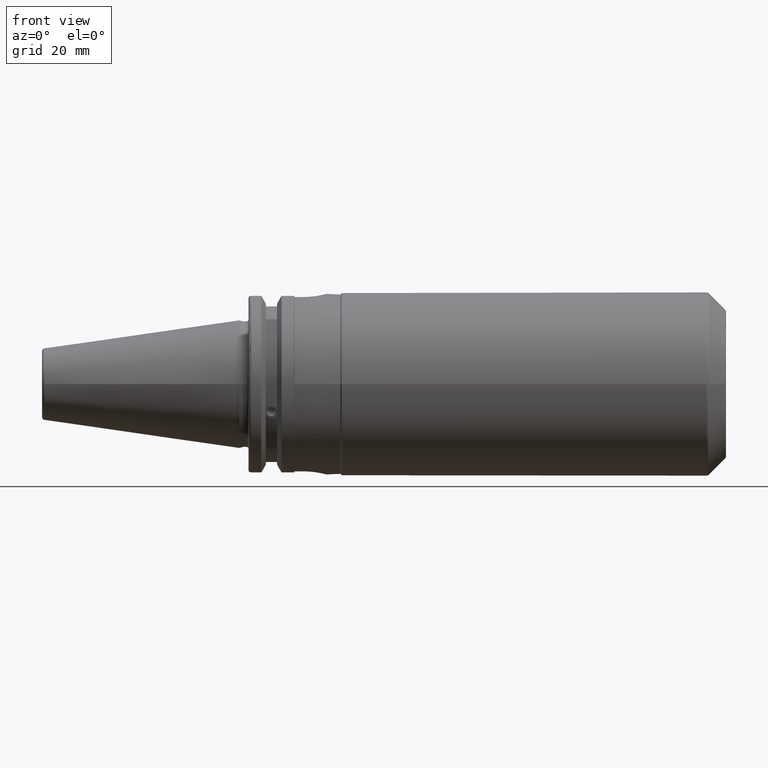
[diagram: clean part render]
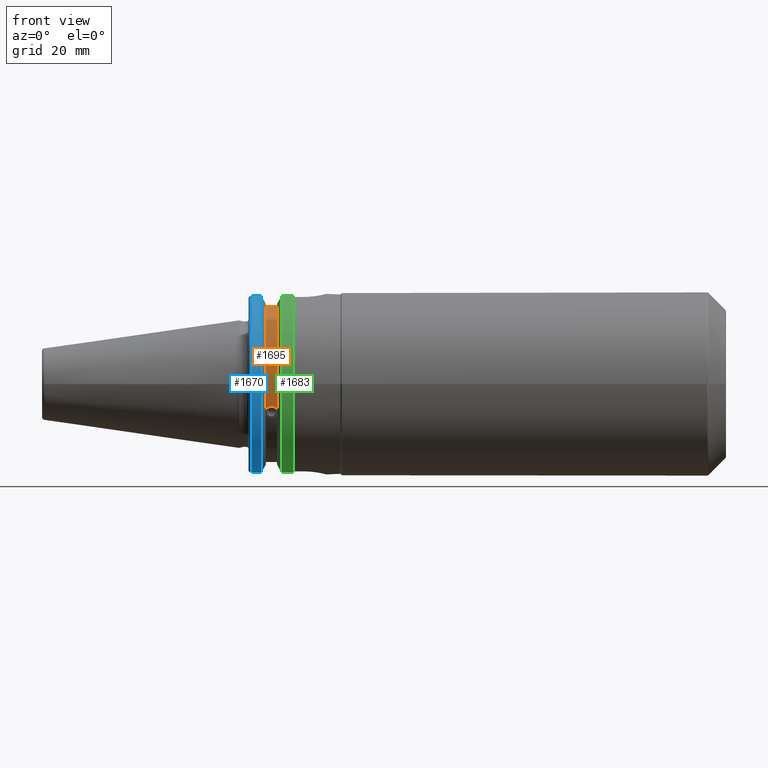
[diagram: same view with three faces highlighted in distinct colors, each labeled with its STEP entity id]
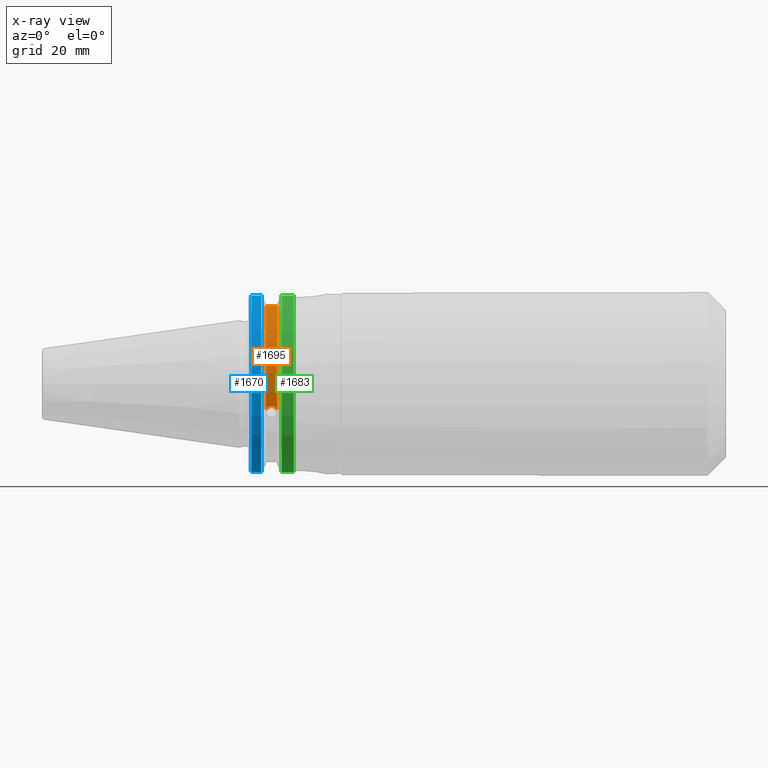
[diagram: x-ray of the same camera — body ghosted, the three highlighted faces saturated]
A machine part, front view with three faces highlighted in distinct colors.
The next image is the same camera in x-ray (body ghosted, the three faces saturated) — at least one of them is partly hidden behind the body in this view.
Their STEP definitions:

[orange] entity #1695 — the highlighted cylindrical surface (partial cylindrical patch) has radius 28.15 mm, axis along (1, 0, 0).
#142=CYLINDRICAL_SURFACE('',#1908,28.15);
#228=FACE_OUTER_BOUND('',#337,.T.);
#337=EDGE_LOOP('',(#1564,#1565,#1566,#1567));
#370=B_SPLINE_CURVE_WITH_KNOTS('',3,(#2902,#2903,#2904,#2905,#2906,#2907,
#2908,#2909,#2910,#2911,#2912,#2913,#2914,#2915),.UNSPECIFIED.,.F.,.F.,
(4,2,2,2,2,2,4),(0.401639126382403,0.474814416953736,0.553950208498303,
0.63308600004287,0.712221791587437,0.791357583132004,0.864532873703336),
 .UNSPECIFIED.);
#471=CIRCLE('',#1905,28.15);
#473=CIRCLE('',#1909,28.15);
#553=LINE('',#3404,#645);
#645=VECTOR('',#2316,10.);
#731=VERTEX_POINT('',#2899);
#732=VERTEX_POINT('',#2901);
#821=VERTEX_POINT('',#3401);
#822=VERTEX_POINT('',#3403);
#926=EDGE_CURVE('',#732,#731,#370,.T.);
#1056=EDGE_CURVE('',#822,#821,#553,.T.);
#1077=EDGE_CURVE('',#821,#732,#471,.T.);
#1079=EDGE_CURVE('',#822,#731,#473,.T.);
#1564=ORIENTED_EDGE('',*,*,#926,.T.);
#1565=ORIENTED_EDGE('',*,*,#1079,.F.);
#1566=ORIENTED_EDGE('',*,*,#1056,.T.);
#1567=ORIENTED_EDGE('',*,*,#1077,.T.);
#1695=ADVANCED_FACE('',(#228),#142,.T.);
#1905=AXIS2_PLACEMENT_3D('',#3450,#2368,#2369);
#1908=AXIS2_PLACEMENT_3D('',#3453,#2374,#2375);
#1909=AXIS2_PLACEMENT_3D('',#3454,#2376,#2377);
#2316=DIRECTION('',(-1.,0.,0.));
#2368=DIRECTION('center_axis',(1.,0.,0.));
#2369=DIRECTION('ref_axis',(0.,0.,-1.));
#2374=DIRECTION('center_axis',(1.,0.,0.));
#2375=DIRECTION('ref_axis',(0.,-0.887654187951484,0.46051063246378));
#2376=DIRECTION('center_axis',(1.,0.,0.));
#2377=DIRECTION('ref_axis',(0.,0.,-1.));
#2899=CARTESIAN_POINT('',(13.042,-26.734714844398,-8.81348524641212));
#2901=CARTESIAN_POINT('',(9.212,-26.734714844398,-8.81348524641212));
#2902=CARTESIAN_POINT('Ctrl Pts',(9.212,-26.734714844398,-8.81348524641212));
#2903=CARTESIAN_POINT('Ctrl Pts',(9.31823057097183,-26.8086519721597,-8.58920529678291));
#2904=CARTESIAN_POINT('Ctrl Pts',(9.46972013770509,-26.8729987454904,-8.38416529997369));
#2905=CARTESIAN_POINT('Ctrl Pts',(9.8284706265741,-26.9778908791383,-8.04056861831091));
#2906=CARTESIAN_POINT('Ctrl Pts',(10.0645450112988,-27.0233016799732,-7.88512567185902));
#2907=CARTESIAN_POINT('Ctrl Pts',(10.5819125426388,-27.0826966800569,-7.6786444840004));
#2908=CARTESIAN_POINT('Ctrl Pts',(10.8632140281848,-27.0968804077294,-7.62768458768513));
#2909=CARTESIAN_POINT('Ctrl Pts',(11.3907859718152,-27.0968804077294,-7.62768458768513));
#2910=CARTESIAN_POINT('Ctrl Pts',(11.6720874573612,-27.0826966800569,-7.6786444840004));
#2911=CARTESIAN_POINT('Ctrl Pts',(12.1894549887012,-27.0233016799732,-7.88512567185903));
#2912=CARTESIAN_POINT('Ctrl Pts',(12.4255293734259,-26.9778908791383,-8.04056861831091));
#2913=CARTESIAN_POINT('Ctrl Pts',(12.7842798622949,-26.8729987454904,-8.3841652999737));
#2914=CARTESIAN_POINT('Ctrl Pts',(12.9357694290282,-26.8086519721597,-8.58920529678291));
#2915=CARTESIAN_POINT('Ctrl Pts',(13.042,-26.734714844398,-8.81348524641212));
#3401=CARTESIAN_POINT('',(9.212,-8.19,26.932255754021));
#3403=CARTESIAN_POINT('',(13.042,-8.19,26.932255754021));
#3404=CARTESIAN_POINT('',(11.127,-8.19,26.932255754021));
#3450=CARTESIAN_POINT('Origin',(9.212,0.,0.));
#3453=CARTESIAN_POINT('Origin',(11.127,0.,0.));
#3454=CARTESIAN_POINT('Origin',(13.042,0.,0.));

[blue] entity #1670 — the highlighted cylindrical surface (partial cylindrical patch) has radius 31.75 mm, axis along (1, 0, 0).
#136=CYLINDRICAL_SURFACE('',#1867,31.75);
#203=FACE_OUTER_BOUND('',#311,.T.);
#311=EDGE_LOOP('',(#1416,#1417,#1418,#1419));
#456=CIRCLE('',#1865,31.75);
#457=CIRCLE('',#1868,31.75);
#540=LINE('',#3310,#632);
#542=LINE('',#3318,#634);
#632=VECTOR('',#2267,10.);
#634=VECTOR('',#2271,10.);
#799=VERTEX_POINT('',#3276);
#800=VERTEX_POINT('',#3285);
#802=VERTEX_POINT('',#3309);
#804=VERTEX_POINT('',#3317);
#1022=EDGE_CURVE('',#799,#800,#456,.T.);
#1026=EDGE_CURVE('',#800,#802,#540,.T.);
#1029=EDGE_CURVE('',#804,#799,#542,.T.);
#1030=EDGE_CURVE('',#802,#804,#457,.T.);
#1416=ORIENTED_EDGE('',*,*,#1022,.F.);
#1417=ORIENTED_EDGE('',*,*,#1029,.F.);
#1418=ORIENTED_EDGE('',*,*,#1030,.F.);
#1419=ORIENTED_EDGE('',*,*,#1026,.F.);
#1670=ADVANCED_FACE('',(#203),#136,.T.);
#1865=AXIS2_PLACEMENT_3D('',#3286,#2263,#2264);
#1867=AXIS2_PLACEMENT_3D('',#3316,#2269,#2270);
#1868=AXIS2_PLACEMENT_3D('',#3319,#2272,#2273);
#2263=DIRECTION('center_axis',(-1.,0.,0.));
#2264=DIRECTION('ref_axis',(0.,-1.,1.60812264967664E-16));
#2267=DIRECTION('',(1.,0.,0.));
#2269=DIRECTION('center_axis',(1.,0.,0.));
#2270=DIRECTION('ref_axis',(0.,-1.,1.22464679914735E-16));
#2271=DIRECTION('',(-1.,0.,0.));
#2272=DIRECTION('center_axis',(1.,0.,0.));
#2273=DIRECTION('ref_axis',(0.,0.,-1.));
#3276=CARTESIAN_POINT('',(4.175,-8.67204822802685,-30.5427254764662));
#3285=CARTESIAN_POINT('',(4.175,-8.67204822802685,30.5427254764662));
#3286=CARTESIAN_POINT('Origin',(4.175,0.,0.));
#3309=CARTESIAN_POINT('',(7.60083323092435,-8.67204822802685,30.5427254764662));
#3310=CARTESIAN_POINT('',(5.38791661546218,-8.67204822802685,30.5427254764662));
#3316=CARTESIAN_POINT('Origin',(5.38791661546218,0.,0.));
#3317=CARTESIAN_POINT('',(7.60083323092435,-8.67204822802685,-30.5427254764662));
#3318=CARTESIAN_POINT('',(5.38791661546218,-8.67204822802685,-30.5427254764662));
#3319=CARTESIAN_POINT('Origin',(7.60083323092435,0.,0.));

[green] entity #1683 — the highlighted cylindrical surface (partial cylindrical patch) has radius 31.75 mm, axis along (1, 0, 0).
#137=CYLINDRICAL_SURFACE('',#1888,31.75);
#216=FACE_OUTER_BOUND('',#325,.T.);
#325=EDGE_LOOP('',(#1507,#1508,#1509,#1510));
#431=CIRCLE('',#1807,31.75);
#454=CIRCLE('',#1859,31.75);
#537=LINE('',#3246,#629);
#560=LINE('',#3421,#652);
#629=VECTOR('',#2252,10.);
#652=VECTOR('',#2329,10.);
#744=VERTEX_POINT('',#2985);
#745=VERTEX_POINT('',#2989);
#794=VERTEX_POINT('',#3221);
#795=VERTEX_POINT('',#3232);
#943=EDGE_CURVE('',#745,#744,#431,.T.);
#1013=EDGE_CURVE('',#795,#794,#454,.T.);
#1015=EDGE_CURVE('',#745,#795,#537,.T.);
#1065=EDGE_CURVE('',#794,#744,#560,.T.);
#1507=ORIENTED_EDGE('',*,*,#1013,.F.);
#1508=ORIENTED_EDGE('',*,*,#1015,.F.);
#1509=ORIENTED_EDGE('',*,*,#943,.T.);
#1510=ORIENTED_EDGE('',*,*,#1065,.F.);
#1683=ADVANCED_FACE('',(#216),#137,.T.);
#1807=AXIS2_PLACEMENT_3D('',#2990,#2120,#2121);
#1859=AXIS2_PLACEMENT_3D('',#3243,#2247,#2248);
#1888=AXIS2_PLACEMENT_3D('',#3422,#2330,#2331);
#2120=DIRECTION('center_axis',(1.,0.,0.));
#2121=DIRECTION('ref_axis',(0.,0.,-1.));
#2247=DIRECTION('center_axis',(1.,0.,0.));
#2248=DIRECTION('ref_axis',(0.,-1.,1.60812264967664E-16));
#2252=DIRECTION('',(1.,0.,0.));
#2329=DIRECTION('',(-1.,0.,0.));
#2330=DIRECTION('center_axis',(1.,0.,0.));
#2331=DIRECTION('ref_axis',(0.,-1.,1.22464679914735E-16));
#2985=CARTESIAN_POINT('',(14.6531667690756,-8.67204822802685,-30.5427254764662));
#2989=CARTESIAN_POINT('',(14.6531667690756,-8.67204822802685,30.5427254764662));
#2990=CARTESIAN_POINT('Origin',(14.6531667690756,0.,0.));
#3221=CARTESIAN_POINT('',(18.85,-8.67204822802685,-30.5427254764662));
#3232=CARTESIAN_POINT('',(18.85,-8.67204822802685,30.5427254764662));
#3243=CARTESIAN_POINT('Origin',(18.85,0.,0.));
#3246=CARTESIAN_POINT('',(16.8515833845378,-8.67204822802685,30.5427254764662));
#3421=CARTESIAN_POINT('',(16.8515833845378,-8.67204822802685,-30.5427254764662));
#3422=CARTESIAN_POINT('Origin',(16.8515833845378,0.,0.));